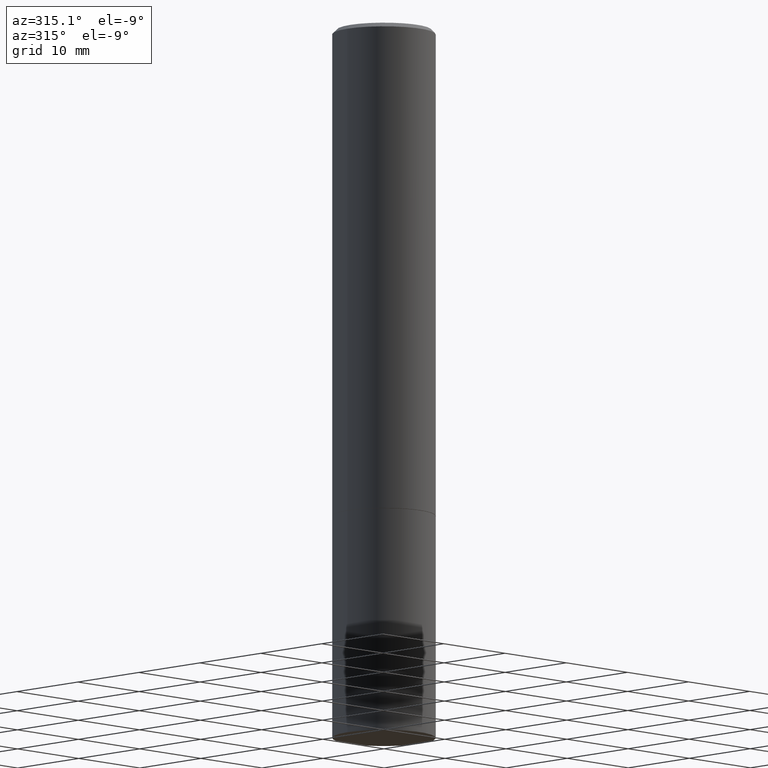
[diagram: clean part render]
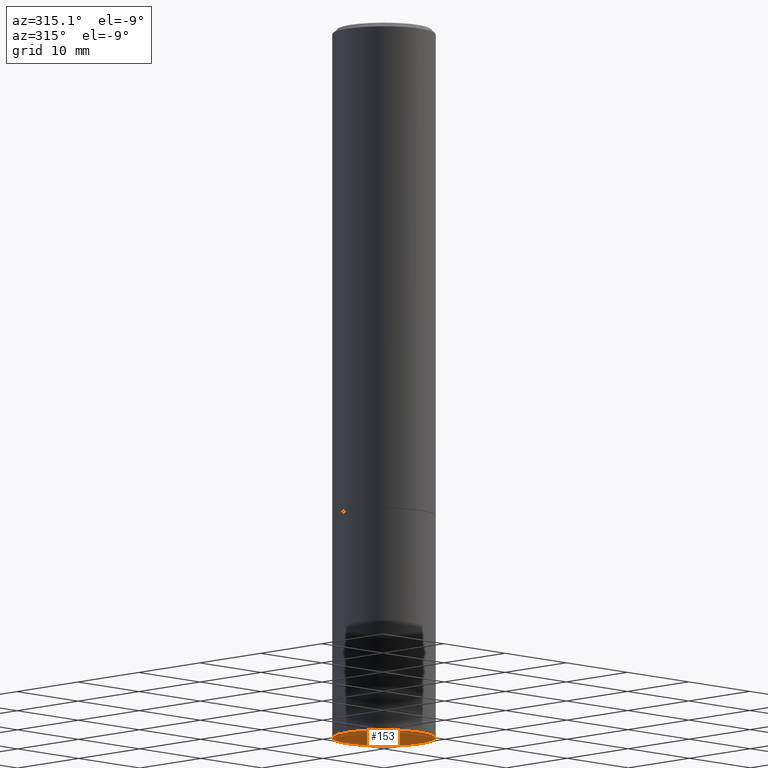
[diagram: same view with one face highlighted and labeled with its STEP entity id]
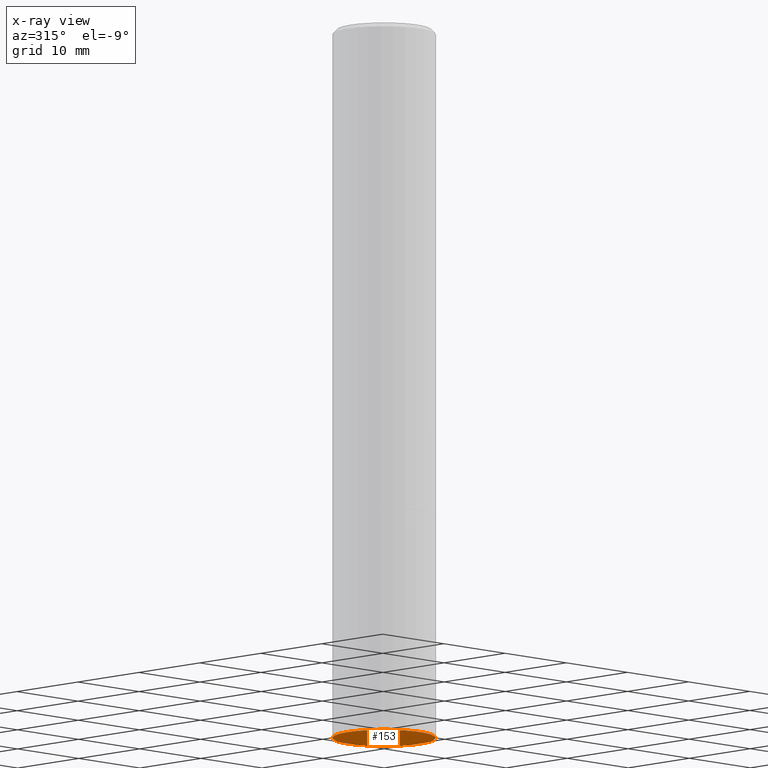
[diagram: x-ray of the same camera — body ghosted, the highlighted face saturated]
A machine part, auxiliary view. The second image highlights one B-rep face of the part: STEP entity #153.
The next image is the same camera in x-ray: the body ghosted, the highlighted face saturated — about 0% of this face is hidden behind the body in this view.
In plain terms, the highlighted planar face has unit normal (0, -0, -1).
Its self-contained STEP definition (entity closure, byte-faithful):
#9 = ORIENTED_EDGE ( 'NONE', *, *, #29, .F. ) ;
#29 = EDGE_CURVE ( 'NONE', #345, #65, #234, .T. ) ;
#65 = VERTEX_POINT ( 'NONE', #304 ) ;
#67 = AXIS2_PLACEMENT_3D ( 'NONE', #301, #193, #308 ) ;
#82 = DIRECTION ( 'NONE',  ( 2.438088387897960049E-29, -3.491481338843145188E-15, -1.000000000000000000 ) ) ;
#85 = AXIS2_PLACEMENT_3D ( 'NONE', #178, #211, #97 ) ;
#87 = DIRECTION ( 'NONE',  ( -1.000000000000000000, 6.982962677686265922E-15, -4.876176775795935793E-29 ) ) ;
#97 = DIRECTION ( 'NONE',  ( 1.000000000000000000, -6.982962677686265133E-15, 0.000000000000000000 ) ) ;
#135 = EDGE_LOOP ( 'NONE', ( #332, #9 ) ) ;
#153 = ADVANCED_FACE ( 'NONE', ( #167 ), #206, .T. ) ;
#167 = FACE_OUTER_BOUND ( 'NONE', #135, .T. ) ;
#178 = CARTESIAN_POINT ( 'NONE',  ( 7.991058417971171713E-29, -1.140911357093774644E-14, -3.267700000000000049 ) ) ;
#193 = DIRECTION ( 'NONE',  ( -2.445468806185136597E-29, 3.491481338843145583E-15, 1.000000000000000000 ) ) ;
#206 = PLANE ( 'NONE',  #250 ) ;
#211 = DIRECTION ( 'NONE',  ( -2.445468806185136597E-29, 3.491481338843145583E-15, 1.000000000000000000 ) ) ;
#234 = CIRCLE ( 'NONE', #67, 0.2361999999999999933 ) ;
#238 = CARTESIAN_POINT ( 'NONE',  ( -0.2361999999999999933, -7.943871479852467996E-15, -3.267700000000000049 ) ) ;
#250 = AXIS2_PLACEMENT_3D ( 'NONE', #338, #82, #87 ) ;
#251 = CIRCLE ( 'NONE', #85, 0.2361999999999999933 ) ;
#301 = CARTESIAN_POINT ( 'NONE',  ( 7.991058417971171713E-29, -1.140911357093774644E-14, -3.267700000000000049 ) ) ;
#304 = CARTESIAN_POINT ( 'NONE',  ( 0.2361999999999999933, -1.305848935540724297E-14, -3.267700000000000049 ) ) ;
#308 = DIRECTION ( 'NONE',  ( 1.000000000000000000, -6.982962677686265133E-15, 0.000000000000000000 ) ) ;
#332 = ORIENTED_EDGE ( 'NONE', *, *, #339, .F. ) ;
#338 = CARTESIAN_POINT ( 'NONE',  ( 1.649375784469575806E-15, 0.2361999999999885858, -3.267700000000001381 ) ) ;
#339 = EDGE_CURVE ( 'NONE', #65, #345, #251, .T. ) ;
#345 = VERTEX_POINT ( 'NONE', #238 ) ;